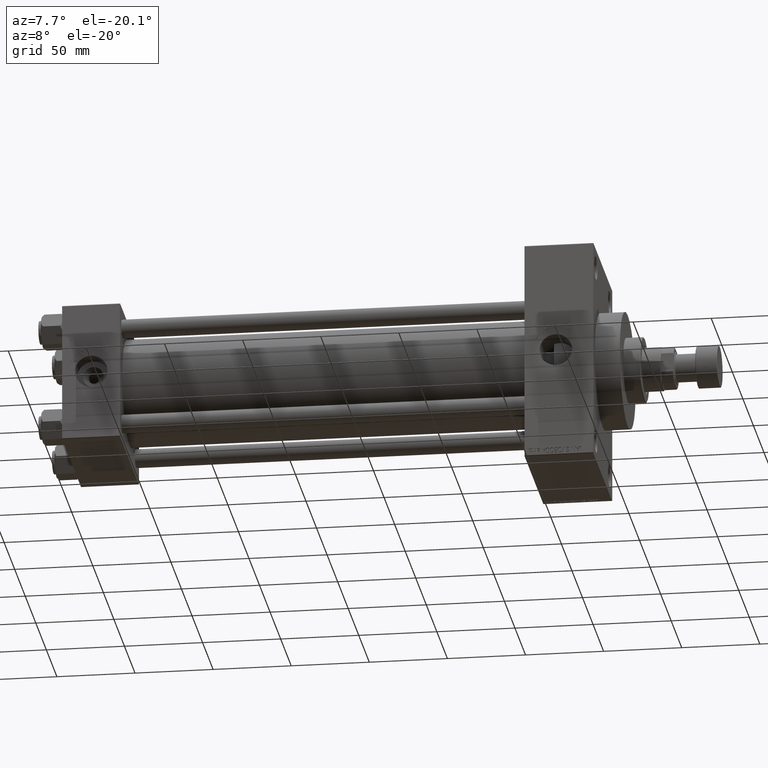
[diagram: clean part render]
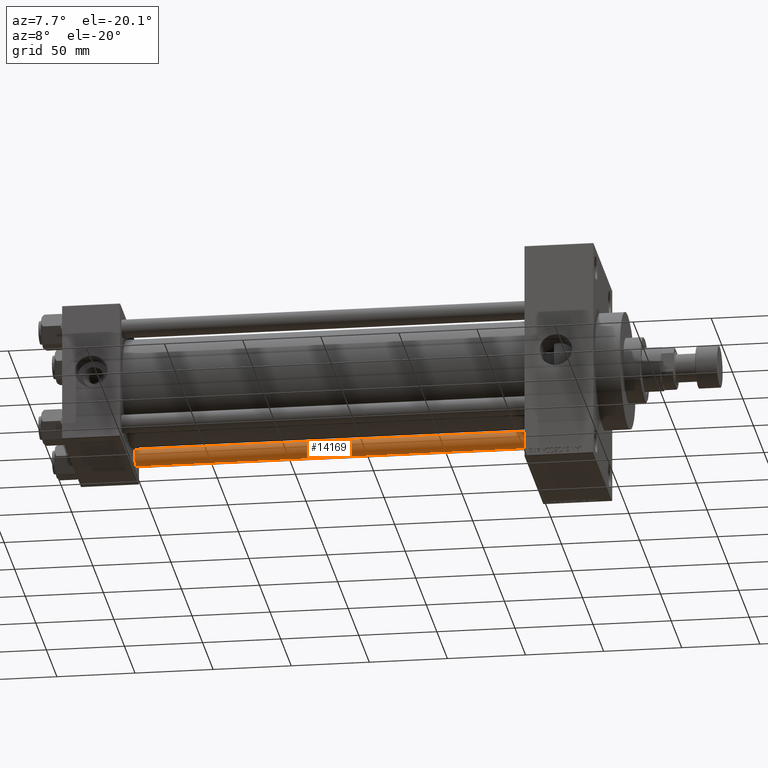
[diagram: same view with one face highlighted and labeled with its STEP entity id]
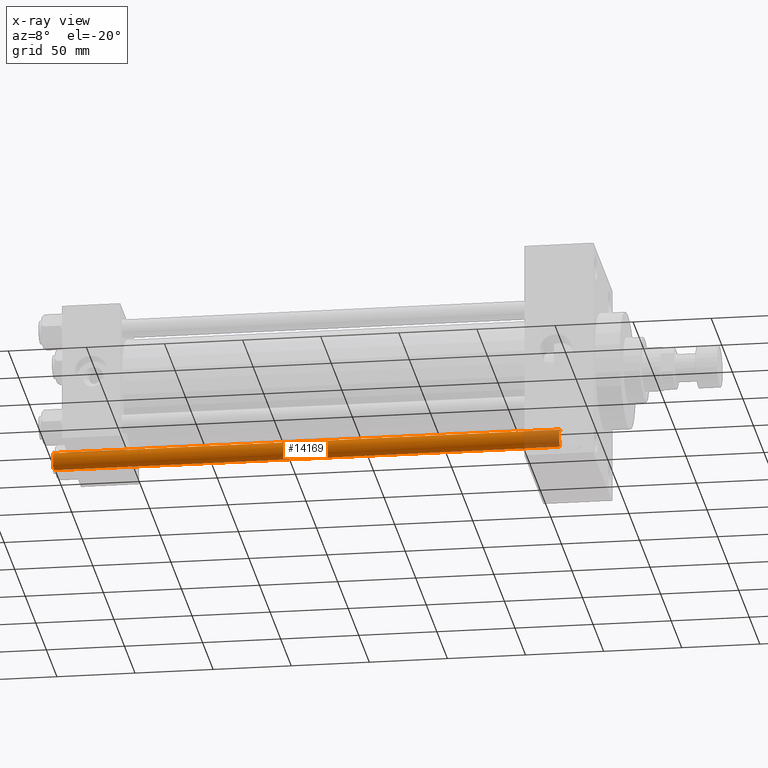
[diagram: x-ray of the same camera — body ghosted, the highlighted face saturated]
A machine part, auxiliary view. The second image highlights one B-rep face of the part: STEP entity #14169.
The next image is the same camera in x-ray: the body ghosted, the highlighted face saturated — about 8% of this face is hidden behind the body in this view.
In plain terms, the highlighted cylindrical surface (edge-blend (fillet) strip) has radius 6 mm, axis along (1, -0, 0).
Its self-contained STEP definition (entity closure, byte-faithful):
#5043 = DIRECTION ( 'NONE',  ( 0.000000000000000000, 0.000000000000000000, -1.000000000000000000 ) ) ;
#7296 = CARTESIAN_POINT ( 'NONE',  ( -6.000000000000000888, 0.000000000000000000, 0.5000000000000004441 ) ) ;
#8278 = VERTEX_POINT ( 'NONE', #43713 ) ;
#8931 = DIRECTION ( 'NONE',  ( -0.000000000000000000, -0.000000000000000000, 1.000000000000000000 ) ) ;
#9405 = DIRECTION ( 'NONE',  ( 1.000000000000000000, 0.000000000000000000, 0.000000000000000000 ) ) ;
#10801 = VECTOR ( 'NONE', #32607, 1000.000000000000000 ) ;
#11635 = CIRCLE ( 'NONE', #18791, 6.000000000000000888 ) ;
#12386 = ORIENTED_EDGE ( 'NONE', *, *, #36723, .T. ) ;
#12682 = FACE_OUTER_BOUND ( 'NONE', #13052, .T. ) ;
#12772 = AXIS2_PLACEMENT_3D ( 'NONE', #43871, #17642, #39630 ) ;
#13052 = EDGE_LOOP ( 'NONE', ( #48187, #12386, #42788, #28489 ) ) ;
#13897 = CYLINDRICAL_SURFACE ( 'NONE', #12772, 6.000000000000000888 ) ;
#14158 = AXIS2_PLACEMENT_3D ( 'NONE', #16908, #8931, #9405 ) ;
#14169 = ADVANCED_FACE ( 'NONE', ( #12682 ), #13897, .T. ) ;
#15743 = DIRECTION ( 'NONE',  ( -0.000000000000000000, -0.000000000000000000, -1.000000000000000000 ) ) ;
#16673 = LINE ( 'NONE', #23225, #22953 ) ;
#16908 = CARTESIAN_POINT ( 'NONE',  ( 0.000000000000000000, 0.000000000000000000, 0.5000000000000004441 ) ) ;
#17125 = CARTESIAN_POINT ( 'NONE',  ( -6.000000000000000888, 0.000000000000000000, 325.0000000000000000 ) ) ;
#17642 = DIRECTION ( 'NONE',  ( -0.000000000000000000, -0.000000000000000000, -1.000000000000000000 ) ) ;
#18791 = AXIS2_PLACEMENT_3D ( 'NONE', #35271, #5043, #20752 ) ;
#19685 = VERTEX_POINT ( 'NONE', #7296 ) ;
#20752 = DIRECTION ( 'NONE',  ( 1.000000000000000000, 0.000000000000000000, 0.000000000000000000 ) ) ;
#22953 = VECTOR ( 'NONE', #15743, 1000.000000000000000 ) ;
#23225 = CARTESIAN_POINT ( 'NONE',  ( 6.000000000000000888, 7.347880794884120722E-16, 325.0000000000000000 ) ) ;
#26223 = CARTESIAN_POINT ( 'NONE',  ( 6.000000000000000888, 7.347880794884120722E-16, 0.5000000000000004441 ) ) ;
#28489 = ORIENTED_EDGE ( 'NONE', *, *, #40559, .T. ) ;
#28604 = LINE ( 'NONE', #17125, #10801 ) ;
#32607 = DIRECTION ( 'NONE',  ( -0.000000000000000000, -0.000000000000000000, -1.000000000000000000 ) ) ;
#35271 = CARTESIAN_POINT ( 'NONE',  ( 0.000000000000000000, 0.000000000000000000, 324.5000000000001137 ) ) ;
#35582 = EDGE_CURVE ( 'NONE', #43740, #19685, #28604, .T. ) ;
#36723 = EDGE_CURVE ( 'NONE', #8278, #43740, #11635, .T. ) ;
#36939 = VERTEX_POINT ( 'NONE', #26223 ) ;
#39630 = DIRECTION ( 'NONE',  ( -1.000000000000000000, 0.000000000000000000, 0.000000000000000000 ) ) ;
#39683 = CIRCLE ( 'NONE', #14158, 6.000000000000000888 ) ;
#40559 = EDGE_CURVE ( 'NONE', #19685, #36939, #39683, .T. ) ;
#42788 = ORIENTED_EDGE ( 'NONE', *, *, #35582, .T. ) ;
#43627 = CARTESIAN_POINT ( 'NONE',  ( -6.000000000000000888, 0.000000000000000000, 324.5000000000001137 ) ) ;
#43713 = CARTESIAN_POINT ( 'NONE',  ( 6.000000000000000888, 7.347880794884120722E-16, 324.5000000000001137 ) ) ;
#43740 = VERTEX_POINT ( 'NONE', #43627 ) ;
#43871 = CARTESIAN_POINT ( 'NONE',  ( 0.000000000000000000, 0.000000000000000000, 325.0000000000000000 ) ) ;
#44954 = EDGE_CURVE ( 'NONE', #8278, #36939, #16673, .T. ) ;
#48187 = ORIENTED_EDGE ( 'NONE', *, *, #44954, .F. ) ;